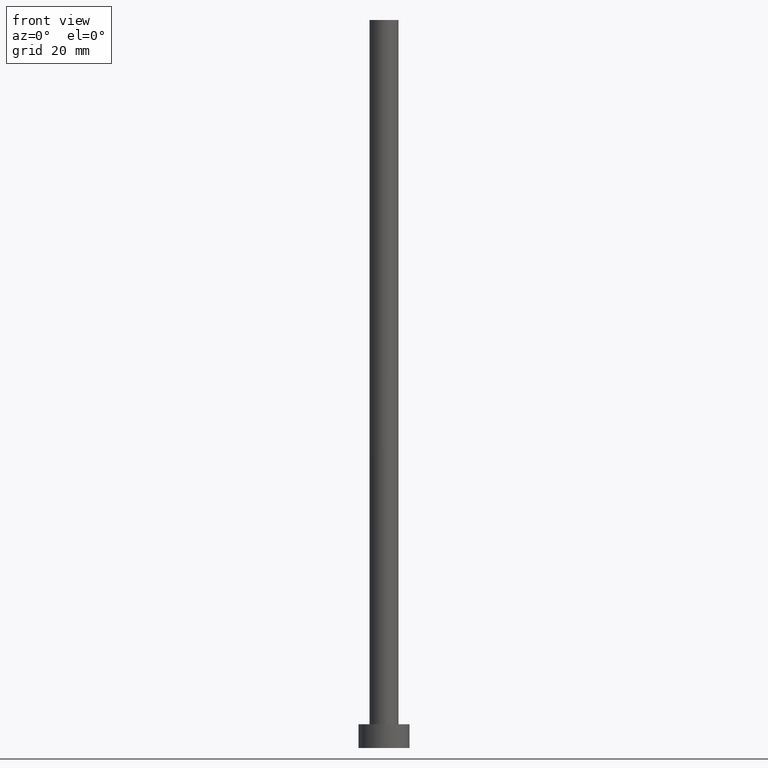
[diagram: clean part render]
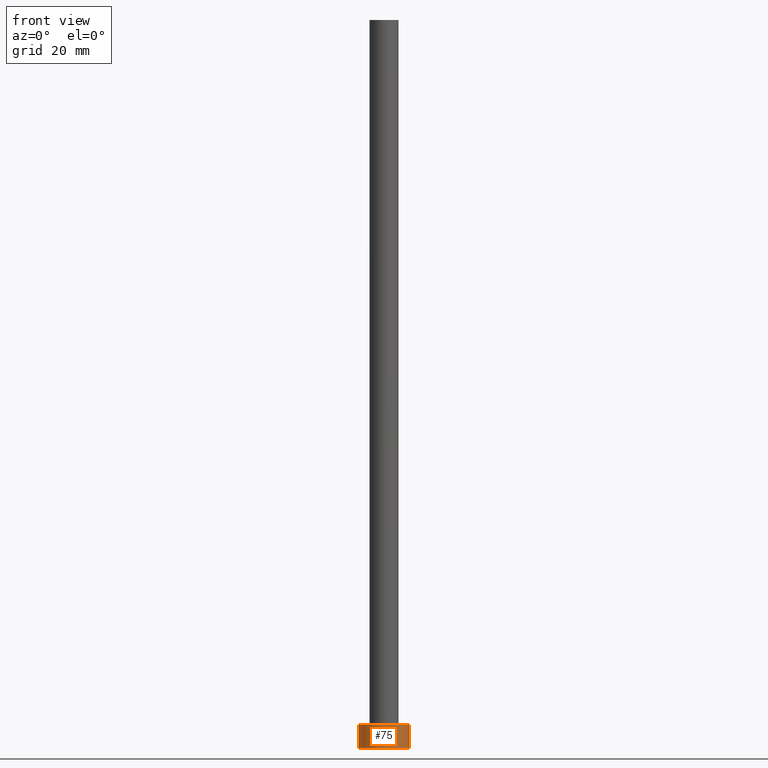
[diagram: same view with one face highlighted and labeled with its STEP entity id]
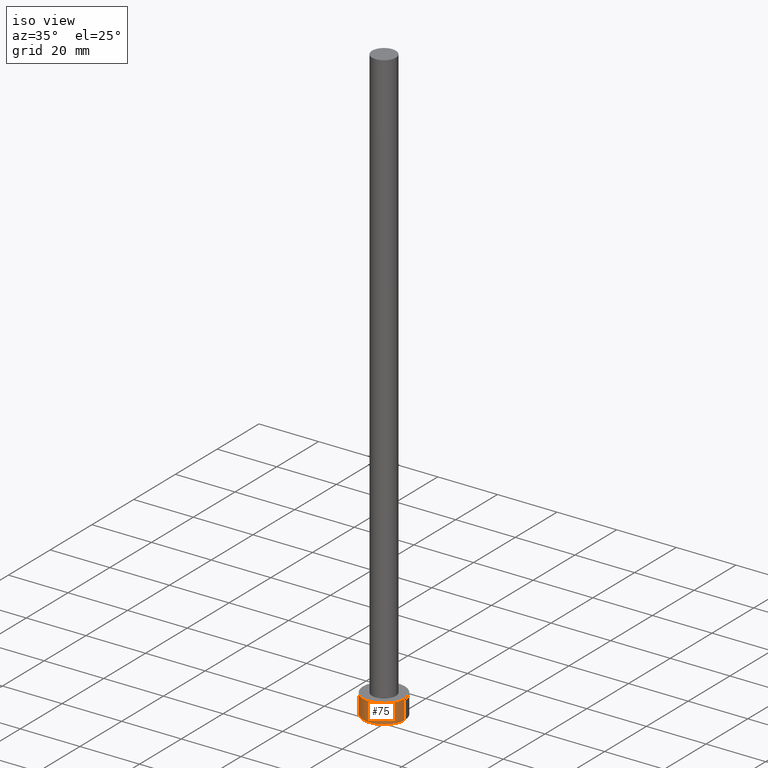
[diagram: same view with one face highlighted and labeled with its STEP entity id]
A machine part, front view. The second image highlights one B-rep face of the part: STEP entity #75.
A second angle (iso view) of the same face is appended — the face is thin or edge-on in the first view.
In plain terms, the highlighted cylindrical surface (edge-blend (fillet) strip) has radius 7 mm, axis along (-0, -0, -1).
Its self-contained STEP definition (entity closure, byte-faithful):
#3 = CARTESIAN_POINT ( 'NONE',  ( 7.000000000000000000, 8.572527594031471218E-16, 6.500000000000000000 ) ) ;
#8 = CARTESIAN_POINT ( 'NONE',  ( 0.000000000000000000, 0.000000000000000000, 6.500000000000000000 ) ) ;
#12 = DIRECTION ( 'NONE',  ( -1.000000000000000000, 0.000000000000000000, 0.000000000000000000 ) ) ;
#22 = CARTESIAN_POINT ( 'NONE',  ( 0.000000000000000000, 0.000000000000000000, 6.500000000000000000 ) ) ;
#24 = DIRECTION ( 'NONE',  ( 0.000000000000000000, 0.000000000000000000, 1.000000000000000000 ) ) ;
#25 = ORIENTED_EDGE ( 'NONE', *, *, #214, .T. ) ;
#32 = AXIS2_PLACEMENT_3D ( 'NONE', #8, #225, #12 ) ;
#44 = LINE ( 'NONE', #179, #246 ) ;
#46 = CARTESIAN_POINT ( 'NONE',  ( 7.000000000000000000, 8.572527594031471218E-16, 0.000000000000000000 ) ) ;
#52 = VERTEX_POINT ( 'NONE', #242 ) ;
#56 = EDGE_CURVE ( 'NONE', #147, #148, #66, .T. ) ;
#63 = CARTESIAN_POINT ( 'NONE',  ( 7.000000000000000000, 8.572527594031471218E-16, 6.500000000000000000 ) ) ;
#66 = LINE ( 'NONE', #3, #209 ) ;
#75 = ADVANCED_FACE ( 'NONE', ( #106 ), #161, .T. ) ;
#79 = DIRECTION ( 'NONE',  ( -0.000000000000000000, -0.000000000000000000, -1.000000000000000000 ) ) ;
#81 = DIRECTION ( 'NONE',  ( -0.000000000000000000, -0.000000000000000000, -1.000000000000000000 ) ) ;
#91 = AXIS2_PLACEMENT_3D ( 'NONE', #22, #24, #139 ) ;
#101 = CIRCLE ( 'NONE', #91, 7.000000000000000000 ) ;
#106 = FACE_OUTER_BOUND ( 'NONE', #131, .T. ) ;
#114 = AXIS2_PLACEMENT_3D ( 'NONE', #137, #204, #144 ) ;
#119 = CARTESIAN_POINT ( 'NONE',  ( -7.000000000000000000, 0.000000000000000000, 6.500000000000000000 ) ) ;
#129 = ORIENTED_EDGE ( 'NONE', *, *, #172, .T. ) ;
#131 = EDGE_LOOP ( 'NONE', ( #208, #132, #129, #25 ) ) ;
#132 = ORIENTED_EDGE ( 'NONE', *, *, #165, .F. ) ;
#137 = CARTESIAN_POINT ( 'NONE',  ( 0.000000000000000000, 0.000000000000000000, 0.000000000000000000 ) ) ;
#139 = DIRECTION ( 'NONE',  ( 1.000000000000000000, 0.000000000000000000, 0.000000000000000000 ) ) ;
#144 = DIRECTION ( 'NONE',  ( 1.000000000000000000, 0.000000000000000000, 0.000000000000000000 ) ) ;
#147 = VERTEX_POINT ( 'NONE', #63 ) ;
#148 = VERTEX_POINT ( 'NONE', #46 ) ;
#149 = CIRCLE ( 'NONE', #114, 7.000000000000000000 ) ;
#161 = CYLINDRICAL_SURFACE ( 'NONE', #32, 7.000000000000000000 ) ;
#165 = EDGE_CURVE ( 'NONE', #171, #147, #101, .T. ) ;
#171 = VERTEX_POINT ( 'NONE', #119 ) ;
#172 = EDGE_CURVE ( 'NONE', #171, #52, #44, .T. ) ;
#179 = CARTESIAN_POINT ( 'NONE',  ( -7.000000000000000000, 0.000000000000000000, 6.500000000000000000 ) ) ;
#204 = DIRECTION ( 'NONE',  ( 0.000000000000000000, 0.000000000000000000, 1.000000000000000000 ) ) ;
#208 = ORIENTED_EDGE ( 'NONE', *, *, #56, .F. ) ;
#209 = VECTOR ( 'NONE', #79, 1000.000000000000000 ) ;
#214 = EDGE_CURVE ( 'NONE', #52, #148, #149, .T. ) ;
#225 = DIRECTION ( 'NONE',  ( -0.000000000000000000, -0.000000000000000000, -1.000000000000000000 ) ) ;
#242 = CARTESIAN_POINT ( 'NONE',  ( -7.000000000000000000, 0.000000000000000000, 0.000000000000000000 ) ) ;
#246 = VECTOR ( 'NONE', #81, 1000.000000000000000 ) ;